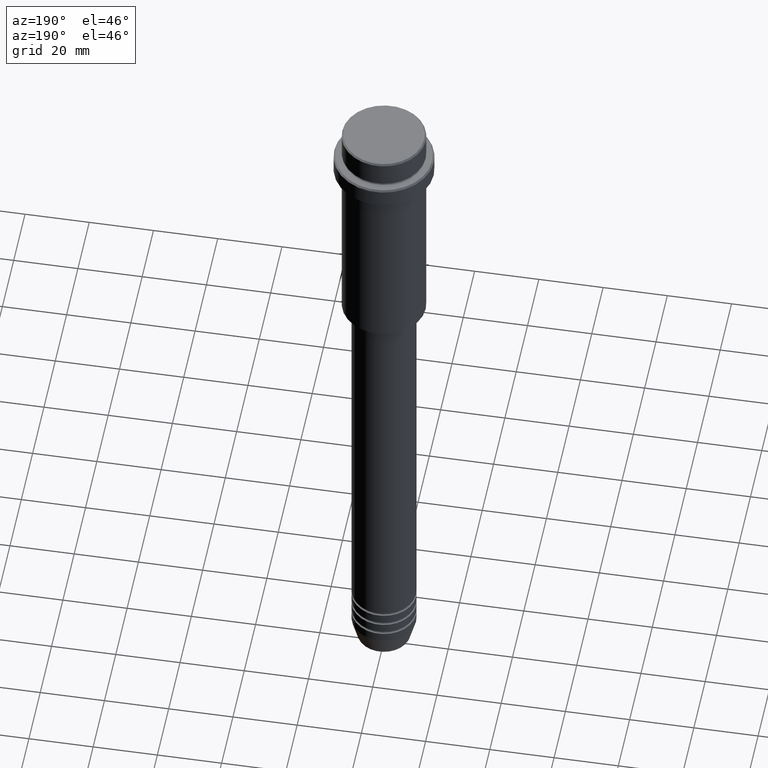
[diagram: clean part render]
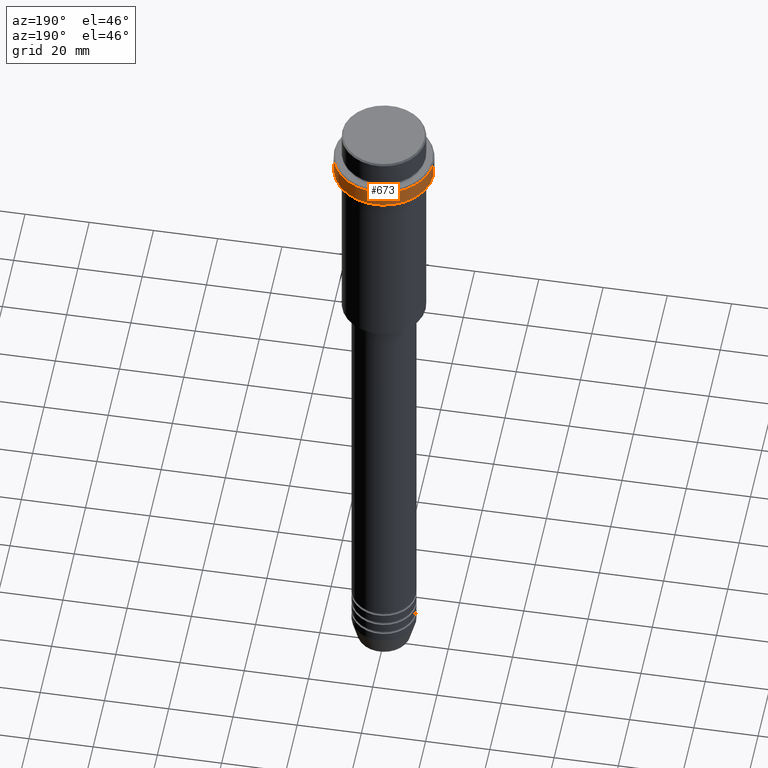
[diagram: same view with one face highlighted and labeled with its STEP entity id]
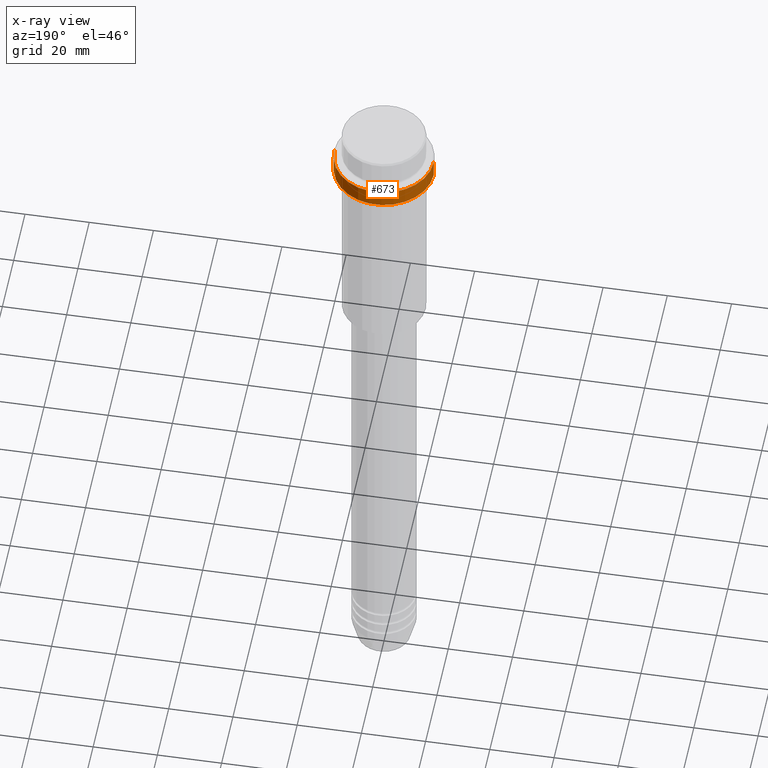
[diagram: x-ray of the same camera — body ghosted, the highlighted face saturated]
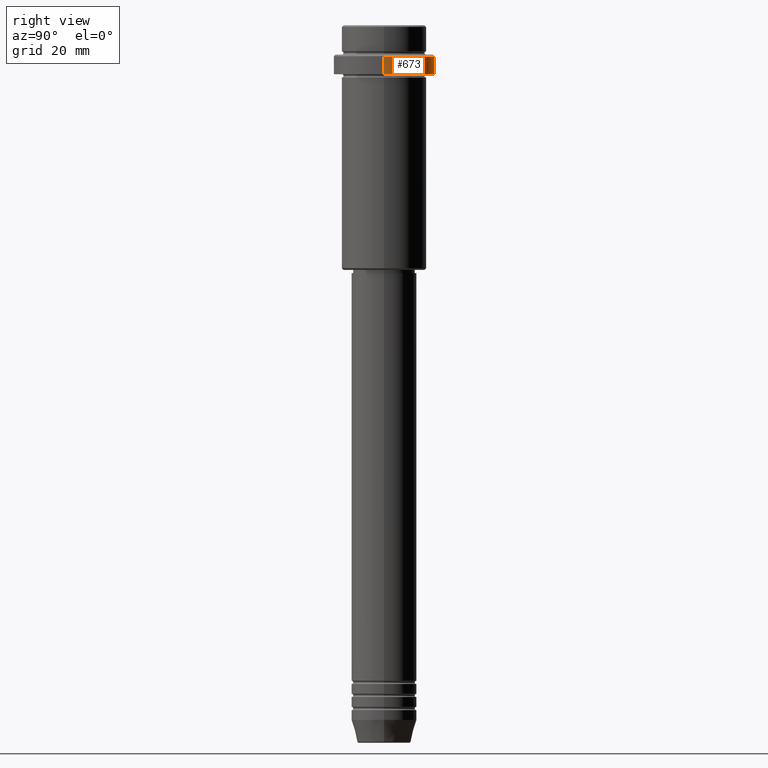
[diagram: same view with one face highlighted and labeled with its STEP entity id]
A machine part, auxiliary view. The second image highlights one B-rep face of the part: STEP entity #673.
The next image is the same camera in x-ray: the body ghosted, the highlighted face saturated — about 0% of this face is hidden behind the body in this view.
A second angle (right view) of the same face is appended — the face is thin or edge-on in the first view.
In plain terms, the highlighted cylindrical surface (partial cylindrical patch) has radius 15.5 mm, axis along (-0, -0, 1).
Its self-contained STEP definition (entity closure, byte-faithful):
#16 = LINE ( 'NONE', #1189, #133 ) ;
#39 = CIRCLE ( 'NONE', #565, 15.50000000000000000 ) ;
#46 = DIRECTION ( 'NONE',  ( -0.000000000000000000, -0.000000000000000000, 1.000000000000000000 ) ) ;
#53 = CYLINDRICAL_SURFACE ( 'NONE', #1262, 15.50000000000000000 ) ;
#64 = CARTESIAN_POINT ( 'NONE',  ( 0.000000000000000000, 0.000000000000000000, -9.500000000000039080 ) ) ;
#72 = VERTEX_POINT ( 'NONE', #126 ) ;
#123 = DIRECTION ( 'NONE',  ( -0.000000000000000000, -0.000000000000000000, 1.000000000000000000 ) ) ;
#126 = CARTESIAN_POINT ( 'NONE',  ( -15.50000000000000000, 1.898202538678397557E-15, -15.00000000000000000 ) ) ;
#133 = VECTOR ( 'NONE', #123, 1000.000000000000000 ) ;
#159 = VERTEX_POINT ( 'NONE', #553 ) ;
#172 = DIRECTION ( 'NONE',  ( -0.000000000000000000, -0.000000000000000000, 1.000000000000000000 ) ) ;
#184 = FACE_OUTER_BOUND ( 'NONE', #605, .T. ) ;
#350 = EDGE_CURVE ( 'NONE', #735, #159, #877, .T. ) ;
#384 = EDGE_CURVE ( 'NONE', #669, #72, #39, .T. ) ;
#393 = DIRECTION ( 'NONE',  ( 1.000000000000000000, 0.000000000000000000, 0.000000000000000000 ) ) ;
#423 = ORIENTED_EDGE ( 'NONE', *, *, #350, .T. ) ;
#497 = CARTESIAN_POINT ( 'NONE',  ( 15.50000000000000000, 0.000000000000000000, -15.00000000000000000 ) ) ;
#507 = DIRECTION ( 'NONE',  ( 0.000000000000000000, 0.000000000000000000, -1.000000000000000000 ) ) ;
#553 = CARTESIAN_POINT ( 'NONE',  ( 15.50000000000000000, 0.000000000000000000, -9.500000000000039080 ) ) ;
#565 = AXIS2_PLACEMENT_3D ( 'NONE', #1296, #1292, #1097 ) ;
#597 = LINE ( 'NONE', #707, #1090 ) ;
#605 = EDGE_LOOP ( 'NONE', ( #870, #776, #423, #727 ) ) ;
#623 = DIRECTION ( 'NONE',  ( 1.000000000000000000, 0.000000000000000000, 0.000000000000000000 ) ) ;
#658 = AXIS2_PLACEMENT_3D ( 'NONE', #64, #507, #623 ) ;
#669 = VERTEX_POINT ( 'NONE', #497 ) ;
#673 = ADVANCED_FACE ( 'NONE', ( #184 ), #53, .T. ) ;
#707 = CARTESIAN_POINT ( 'NONE',  ( 15.50000000000000000, 0.000000000000000000, 0.000000000000000000 ) ) ;
#727 = ORIENTED_EDGE ( 'NONE', *, *, #974, .F. ) ;
#735 = VERTEX_POINT ( 'NONE', #1260 ) ;
#776 = ORIENTED_EDGE ( 'NONE', *, *, #895, .T. ) ;
#870 = ORIENTED_EDGE ( 'NONE', *, *, #384, .T. ) ;
#877 = CIRCLE ( 'NONE', #658, 15.50000000000000000 ) ;
#895 = EDGE_CURVE ( 'NONE', #72, #735, #16, .T. ) ;
#942 = CARTESIAN_POINT ( 'NONE',  ( 0.000000000000000000, 0.000000000000000000, 0.000000000000000000 ) ) ;
#974 = EDGE_CURVE ( 'NONE', #669, #159, #597, .T. ) ;
#1090 = VECTOR ( 'NONE', #46, 1000.000000000000000 ) ;
#1097 = DIRECTION ( 'NONE',  ( 1.000000000000000000, 0.000000000000000000, 0.000000000000000000 ) ) ;
#1189 = CARTESIAN_POINT ( 'NONE',  ( -15.50000000000000000, 1.898202538678397557E-15, 0.000000000000000000 ) ) ;
#1260 = CARTESIAN_POINT ( 'NONE',  ( -15.50000000000000000, 1.898202538678397557E-15, -9.500000000000039080 ) ) ;
#1262 = AXIS2_PLACEMENT_3D ( 'NONE', #942, #172, #393 ) ;
#1292 = DIRECTION ( 'NONE',  ( -0.000000000000000000, -0.000000000000000000, 1.000000000000000000 ) ) ;
#1296 = CARTESIAN_POINT ( 'NONE',  ( 0.000000000000000000, 0.000000000000000000, -15.00000000000000000 ) ) ;